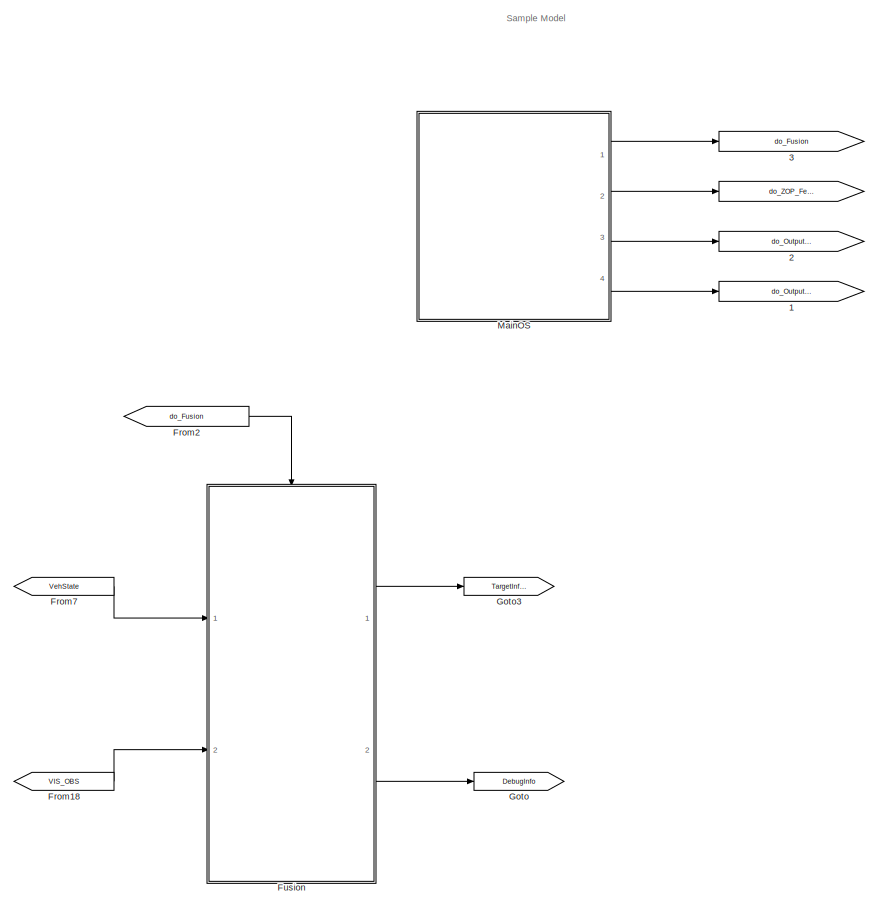
[diagram: root canvas - part 1/3, center side, full height]
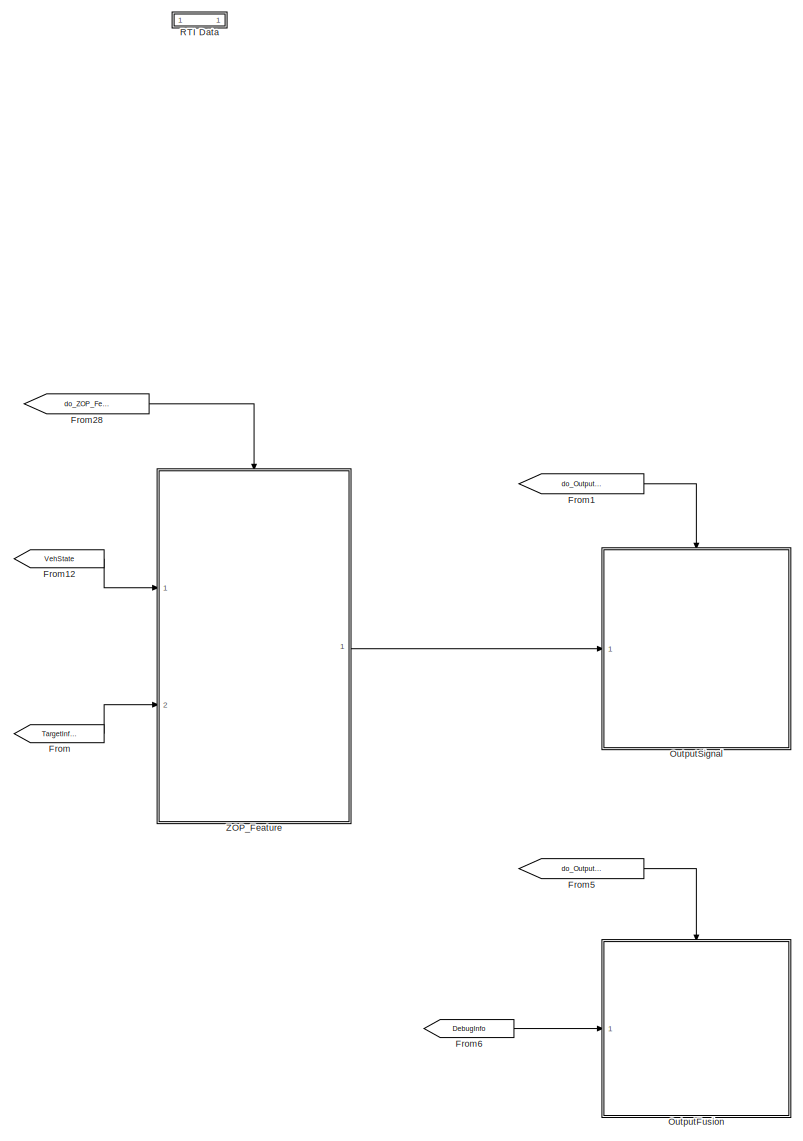
[diagram: root canvas - part 2/3, right side, full height]
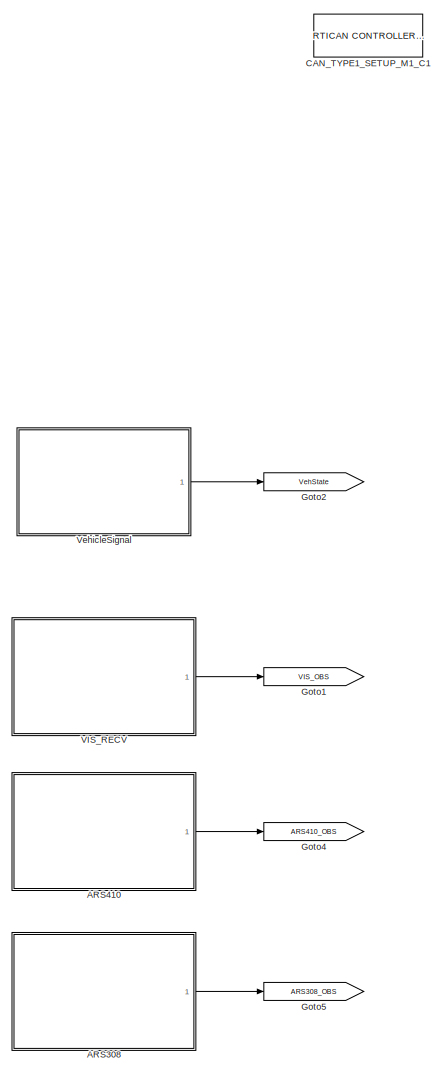
[diagram: root canvas - part 3/3, left side, full height]
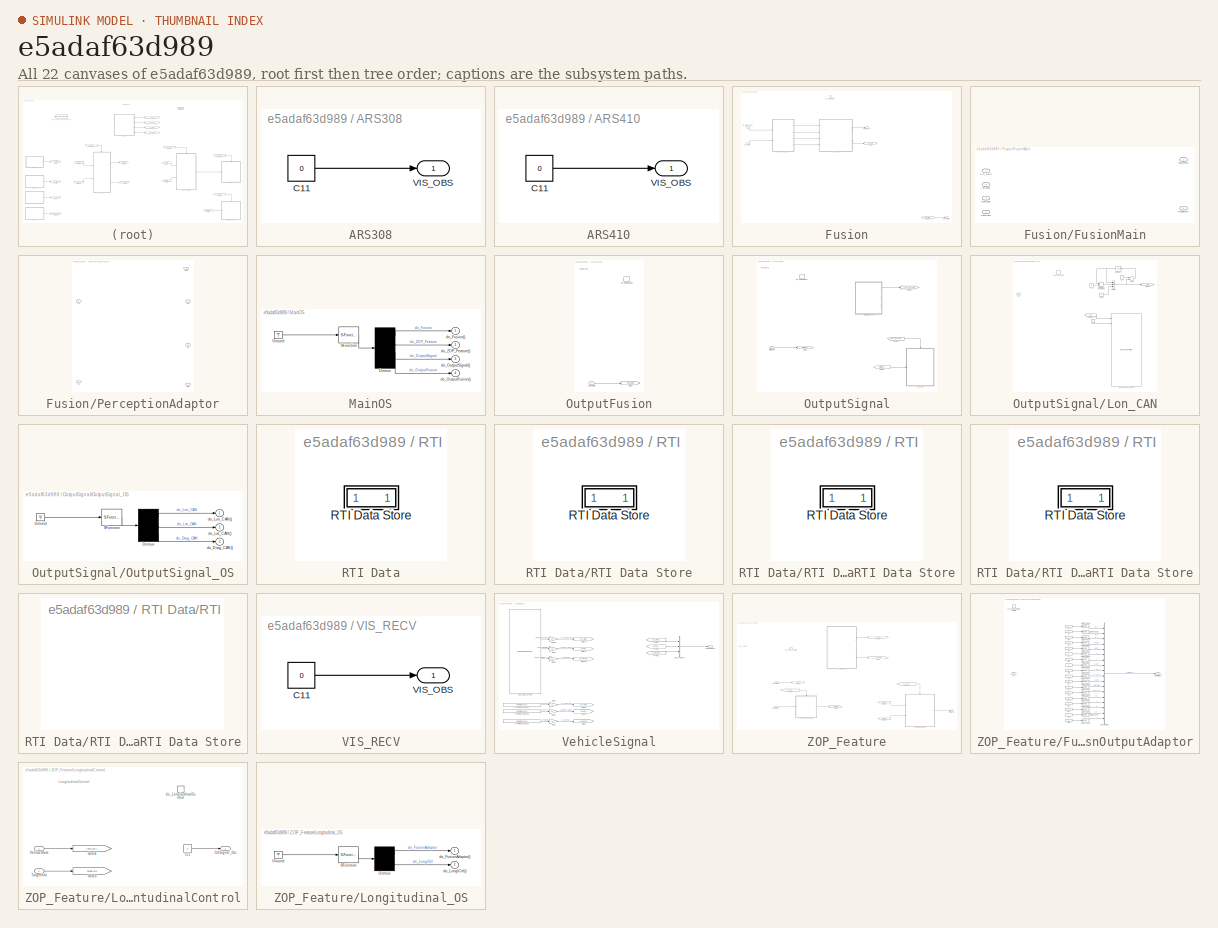
[diagram: thumbnail index - all 22 canvases of the model, root first then tree order]
MODEL slx_e5adaf63d989
KIND model
CONFIG AbsTol = auto
CONFIG EnableMultiTasking = off
CONFIG FixedStep = 0.005
CONFIG MaxStep = auto
CONFIG MinStep = auto
CONFIG PostLoadFcn = if any(exist('dsrtsu_mdlpostloadfcn', 'file') ~= 0), dsrtsu_mdlpostloadfcn('Execute', bdroot); end
CONFIG RelTol = 1e-3
CONFIG SampleTimeConstraint = Unconstrained
CONFIG Solver = FixedStepDiscrete
CONFIG SolverName = FixedStepDiscrete
CONFIG StartTime = 0.0
CONFIG StopTime = inf
BLOCK [Goto]  
  GotoTag = do_ZOP_Feature
BLOCK [Goto] 1
  GotoTag = do_OutputFusion
BLOCK [Goto] 2
  GotoTag = do_OutputSignal
BLOCK [Goto] 3
  GotoTag = do_Fusion
BLOCK [SubSystem] ARS308
  Ports = [0, 1]
  RequestExecContextInheritance = off
BLOCK [Constant] ARS308/C11
  Value = 0
BLOCK [Outport] ARS308/VIS_OBS
  IconDisplay = Port number
BLOCK [SubSystem] ARS410
  Ports = [0, 1]
  RequestExecContextInheritance = off
BLOCK [Constant] ARS410/C11
  Value = 0
BLOCK [Outport] ARS410/VIS_OBS
  IconDisplay = Port number
BLOCK [Reference] CAN_TYPE1_SETUP_M1_C1  REF=rtican/RTICAN
CONTROLLER SETUP 
  AttributesFormatString = Group Id: RTICAN1\n
  Ports = []
  SourceBlock = rtican/RTICAN\nCONTROLLER SETUP
  SourceProductName = dSPACE RTI CAN Blockset
  SourceType = RTI
BLOCK [From] From
  GotoTag = TargetInfo_F
BLOCK [From] From1
  GotoTag = do_OutputSignal
BLOCK [From] From12
  GotoTag = VehState
BLOCK [From] From18
  GotoTag = VIS_OBS
BLOCK [From] From2
  GotoTag = do_Fusion
BLOCK [From] From28
  GotoTag = do_ZOP_Feature
BLOCK [From] From5
  GotoTag = do_OutputFusion
BLOCK [From] From6
  GotoTag = DebugInfo
BLOCK [From] From7
  GotoTag = VehState
BLOCK [SubSystem] Fusion
  Ports = [2, 2, 0, 1]
  RequestExecContextInheritance = off
BLOCK [From] Fusion/From6
  GotoTag = DebugInfo
BLOCK [SubSystem] Fusion/FusionMain
  Ports = [4, 2]
  RequestExecContextInheritance = off
BLOCK [Outport] Fusion/FusionMain/DebugInfo
  IconDisplay = Port number
  Port = 2
BLOCK [Outport] Fusion/FusionMain/FusionObj
  IconDisplay = Port number
BLOCK [Inport] Fusion/FusionMain/VIS_OBS
  IconDisplay = Port number
  OutDataTypeStr = Bus: VIS_OBS_ST
BLOCK [Inport] Fusion/FusionMain/VehState
  IconDisplay = Port number
  Port = 4
BLOCK [Inport] Fusion/FusionMain/leftLane
  IconDisplay = Port number
  Port = 2
BLOCK [Inport] Fusion/FusionMain/rightLane
  IconDisplay = Port number
  Port = 3
BLOCK [Goto] Fusion/Goto
  GotoTag = DebugInfo
BLOCK [SubSystem] Fusion/PerceptionAdaptor
  Ports = [2, 4]
  RequestExecContextInheritance = off
BLOCK [Inport] Fusion/PerceptionAdaptor/In1
  IconDisplay = Port number
BLOCK [Inport] Fusion/PerceptionAdaptor/In2
  IconDisplay = Port number
  Port = 2
BLOCK [Outport] Fusion/PerceptionAdaptor/Out1
  IconDisplay = Port number
  Port = 2
BLOCK [Outport] Fusion/PerceptionAdaptor/Out2
  IconDisplay = Port number
  Port = 3
BLOCK [Outport] Fusion/PerceptionAdaptor/Out3
  IconDisplay = Port number
  Port = 4
BLOCK [Outport] Fusion/PerceptionAdaptor/Out4
  IconDisplay = Port number
BLOCK [Outport] Fusion/SelectorOut
  IconDisplay = Port number
  Port = 2
BLOCK [Outport] Fusion/TargetInfo_F
  IconDisplay = Port number
BLOCK [Inport] Fusion/VIS_OBS_INFO
  IconDisplay = Port number
  Port = 2
BLOCK [Inport] Fusion/VehState
  IconDisplay = Port number
BLOCK [TriggerPort] Fusion/do_Selection
  Ports = []
  StatesWhenEnabling = held
  TriggerType = function-call
  VariantControl = Variant
BLOCK [Goto] Goto
  GotoTag = DebugInfo
BLOCK [Goto] Goto1
  GotoTag = VIS_OBS
BLOCK [Goto] Goto2
  GotoTag = VehState
BLOCK [Goto] Goto3
  GotoTag = TargetInfo_F
BLOCK [Goto] Goto4
  GotoTag = ARS410_OBS
BLOCK [Goto] Goto5
  GotoTag = ARS308_OBS
BLOCK [SubSystem] MainOS
  ErrorFcn = Stateflow.Translate.translate
  PermitHierarchicalResolution = ExplicitOnly
  Ports = [0, 4]
  RequestExecContextInheritance = off
  SFBlockType = Chart
  TreatAsAtomicUnit = on
BLOCK [Demux] MainOS/ Demux 
  Ports = [1, 4]
BLOCK [Ground] MainOS/ Ground 
BLOCK [S-Function] MainOS/ SFunction 
  EnableBusSupport = on
  FunctionName = sf_sfun
  PortCounts = [1 1]
  Ports = [1, 1]
  SFcnIsStateOwnerBlock = off
  SFunctionDeploymentMode = off
  Tag = Stateflow S-Function ZOPDemo 3
BLOCK [Outport] MainOS/do_Fusion()
  IconDisplay = Port number
BLOCK [Outport] MainOS/do_OutputFusion()
  IconDisplay = Port number
  Port = 4
BLOCK [Outport] MainOS/do_OutputSignal()
  IconDisplay = Port number
  Port = 3
BLOCK [Outport] MainOS/do_ZOP_Feature()
  IconDisplay = Port number
  Port = 2
BLOCK [SubSystem] OutputFusion
  Ports = [1, 0, 0, 1]
  RequestExecContextInheritance = off
  TreatAsAtomicUnit = on
BLOCK [Inport] OutputFusion/Debuginfo
  IconDisplay = Port number
BLOCK [Goto] OutputFusion/Goto1
  GotoTag = DebugInfo
BLOCK [TriggerPort] OutputFusion/do_OutputFusion
  Ports = []
  StatesWhenEnabling = held
  TriggerType = function-call
  VariantControl = Variant
BLOCK [SubSystem] OutputSignal
  Ports = [1, 0, 0, 1]
  RequestExecContextInheritance = off
  TreatAsAtomicUnit = on
BLOCK [Inport] OutputSignal/CtrlSignals
  IconDisplay = Port number
BLOCK [From] OutputSignal/From10
  GotoTag = CtrlSignal
BLOCK [From] OutputSignal/From11
  GotoTag = do_Lon_CAN
BLOCK [Goto] OutputSignal/Goto10
  GotoTag = do_Lon_CAN
BLOCK [Goto] OutputSignal/Goto3
  GotoTag = CtrlSignal
BLOCK [SubSystem] OutputSignal/Lon_CAN
  Ports = [1, 0, 0, 1]
  RequestExecContextInheritance = off
BLOCK [Sum] OutputSignal/Lon_CAN/Add8
  InputSameDT = off
  OutDataTypeStr = Inherit: Inherit via internal rule
  Ports = [2, 1]
  SaturateOnIntegerOverflow = off
BLOCK [Constant] OutputSignal/Lon_CAN/C1
  Value = 3
BLOCK [Constant] OutputSignal/Lon_CAN/C11
  Value = 0
BLOCK [Constant] OutputSignal/Lon_CAN/C2
BLOCK [From] OutputSignal/Lon_CAN/From14
  GotoTag = ARC
BLOCK [Goto] OutputSignal/Lon_CAN/Goto13
  GotoTag = ARC
BLOCK [Inport] OutputSignal/Lon_CAN/In1
  IconDisplay = Port number
BLOCK [Reference] OutputSignal/Lon_CAN/RADAR_HSC2_FrP00  REF=rtican/RTICAN
Transmit (TX) 
  AttributesFormatString = Group Id: RTICAN1\n
  Ports = [13, 4]
  SourceBlock = rtican/RTICAN\nTransmit (TX)
  SourceProductName = dSPACE RTI CAN Blockset
  SourceType = RTI
BLOCK [RelationalOperator] OutputSignal/Lon_CAN/Relational Operator11
  InputSameDT = off
  Operator = <=
  OutDataTypeStr = boolean
  Ports = [2, 1]
BLOCK [Switch] OutputSignal/Lon_CAN/Switch4
  Criteria = u2 > Threshold
  InputSameDT = off
  SaturateOnIntegerOverflow = off
  Threshold = 0.5
BLOCK [UnitDelay] OutputSignal/Lon_CAN/Unit Delay4
  SampleTime = -1
BLOCK [Constant] OutputSignal/Lon_CAN/Zero3
  Value = 0
BLOCK [TriggerPort] OutputSignal/Lon_CAN/do_Lon_CAN
  Ports = []
  StatesWhenEnabling = held
  TriggerType = function-call
  VariantControl = Variant
BLOCK [SubSystem] OutputSignal/OutputSignal_OS
  ErrorFcn = Stateflow.Translate.translate
  PermitHierarchicalResolution = ExplicitOnly
  Ports = [0, 3]
  RequestExecContextInheritance = off
  SFBlockType = Chart
  TreatAsAtomicUnit = on
BLOCK [Demux] OutputSignal/OutputSignal_OS/ Demux 
  Outputs = 3
  Ports = [1, 3]
BLOCK [Ground] OutputSignal/OutputSignal_OS/ Ground 
BLOCK [S-Function] OutputSignal/OutputSignal_OS/ SFunction 
  EnableBusSupport = on
  FunctionName = sf_sfun
  PortCounts = [1 1]
  Ports = [1, 1]
  SFcnIsStateOwnerBlock = off
  SFunctionDeploymentMode = off
  Tag = Stateflow S-Function ZOPDemo 6
BLOCK [Outport] OutputSignal/OutputSignal_OS/do_Diag_CAN()
  IconDisplay = Port number
  Port = 3
BLOCK [Outport] OutputSignal/OutputSignal_OS/do_Lat_CAN()
  IconDisplay = Port number
  Port = 2
BLOCK [Outport] OutputSignal/OutputSignal_OS/do_Lon_CAN()
  IconDisplay = Port number
BLOCK [TriggerPort] OutputSignal/do_OutputSignal
  Ports = []
  StatesWhenEnabling = held
  TriggerType = function-call
  VariantControl = Variant
BLOCK [SubSystem] RTI Data
  CopyFcn = if exist('rtidc'), try,  rtidc('DataHostBlockClbCopy', gcbh); catch, disp(['Warning: ''CopyFcn'' for RTI Data block failed: ' lasterr]); end, end,
  DeleteFcn = if exist('rtidc'), try,  rtidc('DataHostBlockClbDelete', gcbh); catch, disp(['Warning: ''DeleteFcn'' for RTI Data block failed: ' lasterr]); end, end,
  LoadFcn = if exist('rtidc'), try,  rtidc('DataHostBlockClbLoad', gcbh); catch, disp(['Warning: ''LoadFcn'' for RTI Data block failed: ' lasterr]); end, end,
  ModelCloseFcn = if exist('rtidc'), try,  rtidc('DataHostBlockClbModelClose', gcbh); catch, disp(['Warning: ''ModelCloseFcn'' for RTI Data block failed: ' lasterr]); end, end,
  NameChangeFcn = if exist('rtidc'), try,  rtidc('DataHostBlockClbNameChange', gcbh); catch, disp(['Warning: ''NameChangeFcn'' for RTI Data block failed: ' lasterr]); end, end,
  Ports = []
  PostSaveFcn = if exist('rtidc'), try,  rtidc('DataHostBlockClbPostSave', gcbh); catch, disp(['Warning: ''PostSaveFcn'' for RTI Data block failed: ' lasterr]); end, end,
  PreSaveFcn = if exist('rtidc'), try,  rtidc('DataHostBlockClbPreSave', gcbh); catch, disp(['Warning: ''PreSaveFcn'' for RTI Data block failed: ' lasterr]); end, end,
  RequestExecContextInheritance = off
  Tag = struct('RTIDataServer',struct('RTIDataServerVs','2','RTIModelDescription','struct(''main'',''ZOPDemo'',''sub'','''',''isMp'',0)'))
BLOCK [SubSystem] RTI Data/RTI Data Store
  Ports = []
  RequestExecContextInheritance = off
  Tag = struct('private',struct('version',struct('dsVer',uint32(2)),'access',struct('modified',['13-Nov-2020 14:59:37'],'type','Model','isPerm',1)),'public',struct('main',struct('data',[]),'sub',struct('name',{{'ZOPDemo'}},'data',{{struct('TH',struct('thTaskInfo',struct('taskType',{'TIMER','HWINT','TMRINT','SWINT','GLINT'},'tasksNumOf',{1,0,0,0,0},'srcIds',{{'TIMERA'},{},{},{},{}},'taskNames',{{['Timer Ta...<+766ch>
BLOCK [SubSystem] RTI Data/RTI Data Store/RTI Data Store
  Ports = []
  RequestExecContextInheritance = off
BLOCK [SubSystem] RTI Data/RTI Data Store/RTI Data Store/RTI Data Store
  Ports = []
  RequestExecContextInheritance = off
BLOCK [SubSystem] RTI Data/RTI Data Store/RTI Data Store/RTI Data Store/RTI Data Store
  Ports = []
  RequestExecContextInheritance = off
BLOCK [SubSystem] VIS_RECV
  Ports = [0, 1]
  RequestExecContextInheritance = off
BLOCK [Constant] VIS_RECV/C11
  Value = 0
BLOCK [Outport] VIS_RECV/VIS_OBS
  IconDisplay = Port number
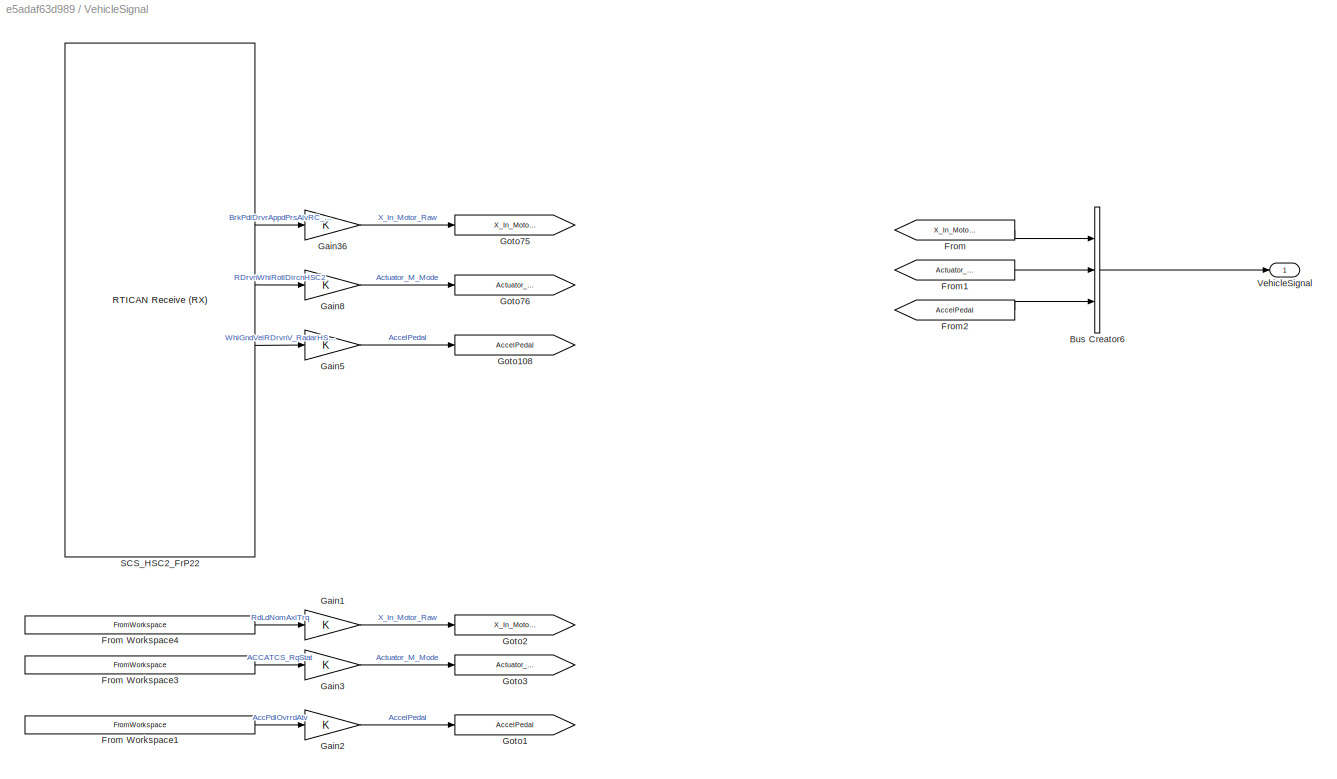
BLOCK [SubSystem] VehicleSignal
  Ports = [0, 1]
  RequestExecContextInheritance = off
  TreatAsAtomicUnit = on
BLOCK [BusCreator] VehicleSignal/Bus Creator6
  DisplayOption = bar
  InheritFromInputs = on
  Inputs = 3
  Ports = [3, 1]
BLOCK [From] VehicleSignal/From
  GotoTag = X_In_Motor_Raw
BLOCK [FromWorkspace] VehicleSignal/From Workspace1
  Commented = on
  Interpolate = off
  OutputAfterFinalValue = Setting to zero
  VariableName = PPEI_Torque_Request_Status_AccPdlOvrrdAtv
  ZeroCross = on
BLOCK [FromWorkspace] VehicleSignal/From Workspace3
  Commented = on
  Interpolate = off
  OutputAfterFinalValue = Setting to zero
  VariableName = PPEI_Torque_Request_Status_ACCATCS_RqStat
  ZeroCross = on
BLOCK [FromWorkspace] VehicleSignal/From Workspace4
  Commented = on
  Interpolate = off
  OutputAfterFinalValue = Setting to zero
  VariableName = PPEI_Torque_Request_Status_RdLdNomAxlTrq
  ZeroCross = on
BLOCK [From] VehicleSignal/From1
  GotoTag = Actuator_M_Mode
BLOCK [From] VehicleSignal/From2
  GotoTag = AccelPedal
BLOCK [Gain] VehicleSignal/Gain1
  Commented = on
  OutDataTypeStr = Inherit: Inherit via internal rule
  ParamDataTypeStr = Inherit: Inherit via internal rule
  SaturateOnIntegerOverflow = off
BLOCK [Gain] VehicleSignal/Gain2
  Commented = on
  OutDataTypeStr = Inherit: Inherit via internal rule
  ParamDataTypeStr = Inherit: Inherit via internal rule
  SaturateOnIntegerOverflow = off
BLOCK [Gain] VehicleSignal/Gain3
  Commented = on
  OutDataTypeStr = Inherit: Inherit via internal rule
  ParamDataTypeStr = Inherit: Inherit via internal rule
  SaturateOnIntegerOverflow = off
BLOCK [Gain] VehicleSignal/Gain36
  OutDataTypeStr = Inherit: Inherit via internal rule
  ParamDataTypeStr = Inherit: Inherit via internal rule
  SaturateOnIntegerOverflow = off
BLOCK [Gain] VehicleSignal/Gain5
  OutDataTypeStr = Inherit: Inherit via internal rule
  ParamDataTypeStr = Inherit: Inherit via internal rule
  SaturateOnIntegerOverflow = off
BLOCK [Gain] VehicleSignal/Gain8
  OutDataTypeStr = Inherit: Inherit via internal rule
  ParamDataTypeStr = Inherit: Inherit via internal rule
  SaturateOnIntegerOverflow = off
BLOCK [Goto] VehicleSignal/Goto1
  Commented = on
  GotoTag = AccelPedal
BLOCK [Goto] VehicleSignal/Goto108
  GotoTag = AccelPedal
BLOCK [Goto] VehicleSignal/Goto2
  Commented = on
  GotoTag = X_In_Motor_Raw
BLOCK [Goto] VehicleSignal/Goto3
  Commented = on
  GotoTag = Actuator_M_Mode
BLOCK [Goto] VehicleSignal/Goto75
  GotoTag = X_In_Motor_Raw
BLOCK [Goto] VehicleSignal/Goto76
  GotoTag = Actuator_M_Mode
BLOCK [Reference] VehicleSignal/SCS_HSC2_FrP22  REF=rtican/RTICAN
Receive (RX) 
  AttributesFormatString = Group Id: RTICAN1\n
  Ports = [0, 16]
  SourceBlock = rtican/RTICAN\nReceive (RX)
  SourceProductName = dSPACE RTI CAN Blockset
  SourceType = RTI
BLOCK [Outport] VehicleSignal/VehicleSignal
  IconDisplay = Port number
BLOCK [SubSystem] ZOP_Feature
  Ports = [2, 1, 0, 1]
  RequestExecContextInheritance = off
  TreatAsAtomicUnit = on
BLOCK [Outport] ZOP_Feature/CtrlSignal
  IconDisplay = Port number
BLOCK [From] ZOP_Feature/From1
  CloseFcn = tagdialog Close
  GotoTag = do_Input_Process
BLOCK [From] ZOP_Feature/From54
  GotoTag = VehicleState
BLOCK [From] ZOP_Feature/From60
  CloseFcn = tagdialog Close
  GotoTag = do_LongiCtrl
BLOCK [From] ZOP_Feature/From61
  GotoTag = TargetInfo
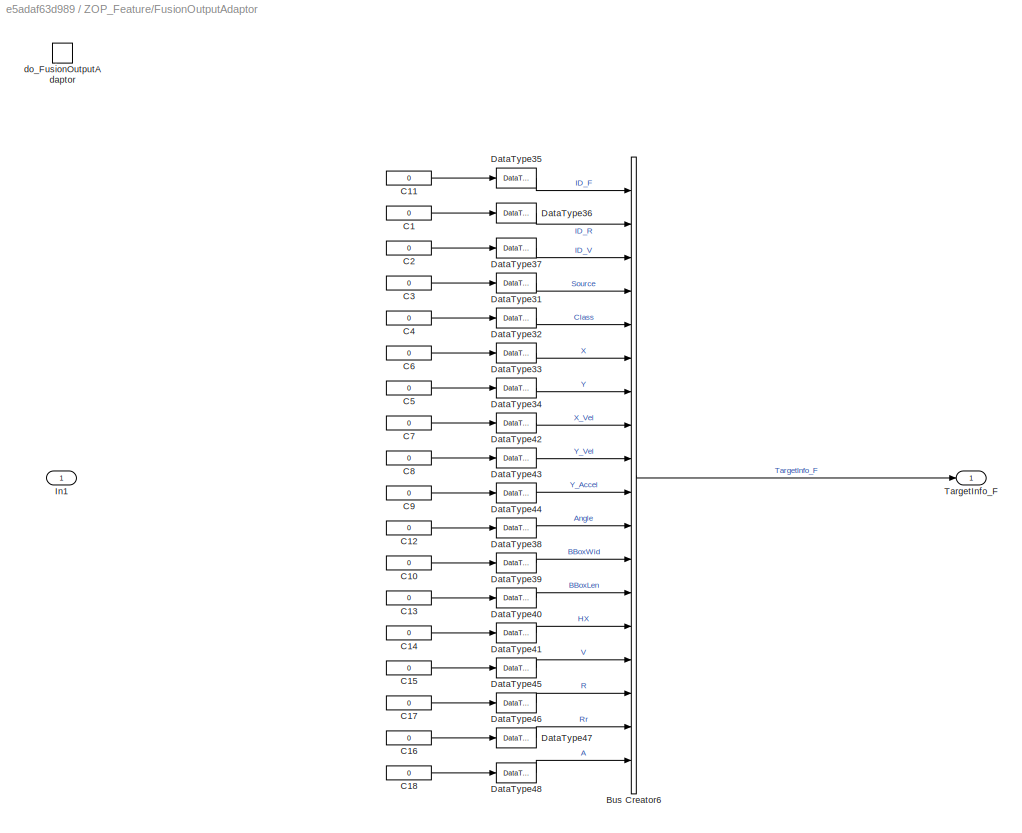
BLOCK [SubSystem] ZOP_Feature/FusionOutputAdaptor
  Ports = [1, 1, 0, 1]
  RequestExecContextInheritance = off
BLOCK [BusCreator] ZOP_Feature/FusionOutputAdaptor/Bus Creator6
  DisplayOption = bar
  InheritFromInputs = on
  Inputs = 18
  Ports = [18, 1]
BLOCK [Constant] ZOP_Feature/FusionOutputAdaptor/C1
  Value = 0
BLOCK [Constant] ZOP_Feature/FusionOutputAdaptor/C10
  Value = 0
BLOCK [Constant] ZOP_Feature/FusionOutputAdaptor/C11
  Value = 0
BLOCK [Constant] ZOP_Feature/FusionOutputAdaptor/C12
  Value = 0
BLOCK [Constant] ZOP_Feature/FusionOutputAdaptor/C13
  Value = 0
BLOCK [Constant] ZOP_Feature/FusionOutputAdaptor/C14
  Value = 0
BLOCK [Constant] ZOP_Feature/FusionOutputAdaptor/C15
  Value = 0
BLOCK [Constant] ZOP_Feature/FusionOutputAdaptor/C16
  Value = 0
BLOCK [Constant] ZOP_Feature/FusionOutputAdaptor/C17
  Value = 0
BLOCK [Constant] ZOP_Feature/FusionOutputAdaptor/C18
  Value = 0
BLOCK [Constant] ZOP_Feature/FusionOutputAdaptor/C2
  Value = 0
BLOCK [Constant] ZOP_Feature/FusionOutputAdaptor/C3
  Value = 0
BLOCK [Constant] ZOP_Feature/FusionOutputAdaptor/C4
  Value = 0
BLOCK [Constant] ZOP_Feature/FusionOutputAdaptor/C5
  Value = 0
BLOCK [Constant] ZOP_Feature/FusionOutputAdaptor/C6
  Value = 0
BLOCK [Constant] ZOP_Feature/FusionOutputAdaptor/C7
  Value = 0
BLOCK [Constant] ZOP_Feature/FusionOutputAdaptor/C8
  Value = 0
BLOCK [Constant] ZOP_Feature/FusionOutputAdaptor/C9
  Value = 0
BLOCK [DataTypeConversion] ZOP_Feature/FusionOutputAdaptor/DataType31
  RndMeth = Floor
  SaturateOnIntegerOverflow = off
BLOCK [DataTypeConversion] ZOP_Feature/FusionOutputAdaptor/DataType32
  RndMeth = Floor
  SaturateOnIntegerOverflow = off
BLOCK [DataTypeConversion] ZOP_Feature/FusionOutputAdaptor/DataType33
  RndMeth = Floor
  SaturateOnIntegerOverflow = off
BLOCK [DataTypeConversion] ZOP_Feature/FusionOutputAdaptor/DataType34
  RndMeth = Floor
  SaturateOnIntegerOverflow = off
BLOCK [DataTypeConversion] ZOP_Feature/FusionOutputAdaptor/DataType35
  RndMeth = Floor
  SaturateOnIntegerOverflow = off
BLOCK [DataTypeConversion] ZOP_Feature/FusionOutputAdaptor/DataType36
  RndMeth = Floor
  SaturateOnIntegerOverflow = off
BLOCK [DataTypeConversion] ZOP_Feature/FusionOutputAdaptor/DataType37
  RndMeth = Floor
  SaturateOnIntegerOverflow = off
BLOCK [DataTypeConversion] ZOP_Feature/FusionOutputAdaptor/DataType38
  RndMeth = Floor
  SaturateOnIntegerOverflow = off
BLOCK [DataTypeConversion] ZOP_Feature/FusionOutputAdaptor/DataType39
  RndMeth = Floor
  SaturateOnIntegerOverflow = off
BLOCK [DataTypeConversion] ZOP_Feature/FusionOutputAdaptor/DataType40
  RndMeth = Floor
  SaturateOnIntegerOverflow = off
BLOCK [DataTypeConversion] ZOP_Feature/FusionOutputAdaptor/DataType41
  RndMeth = Floor
  SaturateOnIntegerOverflow = off
BLOCK [DataTypeConversion] ZOP_Feature/FusionOutputAdaptor/DataType42
  RndMeth = Floor
  SaturateOnIntegerOverflow = off
BLOCK [DataTypeConversion] ZOP_Feature/FusionOutputAdaptor/DataType43
  RndMeth = Floor
  SaturateOnIntegerOverflow = off
BLOCK [DataTypeConversion] ZOP_Feature/FusionOutputAdaptor/DataType44
  RndMeth = Floor
  SaturateOnIntegerOverflow = off
BLOCK [DataTypeConversion] ZOP_Feature/FusionOutputAdaptor/DataType45
  RndMeth = Floor
  SaturateOnIntegerOverflow = off
BLOCK [DataTypeConversion] ZOP_Feature/FusionOutputAdaptor/DataType46
  RndMeth = Floor
  SaturateOnIntegerOverflow = off
BLOCK [DataTypeConversion] ZOP_Feature/FusionOutputAdaptor/DataType47
  RndMeth = Floor
  SaturateOnIntegerOverflow = off
BLOCK [DataTypeConversion] ZOP_Feature/FusionOutputAdaptor/DataType48
  RndMeth = Floor
  SaturateOnIntegerOverflow = off
BLOCK [Inport] ZOP_Feature/FusionOutputAdaptor/In1
  IconDisplay = Port number
BLOCK [Outport] ZOP_Feature/FusionOutputAdaptor/TargetInfo_F
  IconDisplay = Port number
BLOCK [TriggerPort] ZOP_Feature/FusionOutputAdaptor/do_FusionOutputAdaptor
  Ports = []
  StatesWhenEnabling = held
  TriggerType = function-call
  VariantControl = Variant
BLOCK [Goto] ZOP_Feature/Goto
  GotoTag = TargetInfo
BLOCK [Goto] ZOP_Feature/Goto1
  GotoTag = VehicleState
BLOCK [Goto] ZOP_Feature/Goto2
  GotoTag = do_LongiCtrl
BLOCK [Goto] ZOP_Feature/Goto27
  GotoTag = do_Input_Process
BLOCK [SubSystem] ZOP_Feature/LongitudinalControl
  Ports = [2, 1, 0, 1]
  RequestExecContextInheritance = off
BLOCK [Constant] ZOP_Feature/LongitudinalControl/C11
  Value = 0
BLOCK [Outport] ZOP_Feature/LongitudinalControl/CtrlSignal_Out
  IconDisplay = Port number
BLOCK [Goto] ZOP_Feature/LongitudinalControl/Goto3
  GotoTag = TargetInfo
BLOCK [Goto] ZOP_Feature/LongitudinalControl/Goto4
  GotoTag = VehicleState
BLOCK [Inport] ZOP_Feature/LongitudinalControl/TargetInfo
  IconDisplay = Port number
  Port = 2
BLOCK [Inport] ZOP_Feature/LongitudinalControl/VehicleState
  IconDisplay = Port number
BLOCK [TriggerPort] ZOP_Feature/LongitudinalControl/do_LongitudinalControl
  Ports = []
  StatesWhenEnabling = held
  TriggerType = function-call
  VariantControl = Variant
BLOCK [SubSystem] ZOP_Feature/Longitudinal_OS
  ErrorFcn = Stateflow.Translate.translate
  PermitHierarchicalResolution = ExplicitOnly
  Ports = [0, 2]
  RequestExecContextInheritance = off
  SFBlockType = Chart
  TreatAsAtomicUnit = on
BLOCK [Demux] ZOP_Feature/Longitudinal_OS/ Demux 
  Outputs = 2
  Ports = [1, 2]
BLOCK [Ground] ZOP_Feature/Longitudinal_OS/ Ground 
BLOCK [S-Function] ZOP_Feature/Longitudinal_OS/ SFunction 
  EnableBusSupport = on
  FunctionName = sf_sfun
  PortCounts = [1 1]
  Ports = [1, 1]
  SFcnIsStateOwnerBlock = off
  SFunctionDeploymentMode = off
  Tag = Stateflow S-Function ZOPDemo 15
BLOCK [Outport] ZOP_Feature/Longitudinal_OS/do_FusionAdaptor()
  IconDisplay = Port number
BLOCK [Outport] ZOP_Feature/Longitudinal_OS/do_LongiCtrl()
  IconDisplay = Port number
  Port = 2
BLOCK [Inport] ZOP_Feature/TargetInfo_F
  IconDisplay = Port number
  Port = 2
BLOCK [Inport] ZOP_Feature/VehStatus
  IconDisplay = Port number
BLOCK [TriggerPort] ZOP_Feature/do_ZOP_Feature
  Ports = []
  StatesWhenEnabling = held
  TriggerType = function-call
  VariantControl = Variant
ANNOTATION (root): Sample Model
ANNOTATION OutputFusion: OutputFusion
ANNOTATION OutputSignal: OutputSignal
ANNOTATION ZOP_Feature: ZOP_Feature
ANNOTATION ZOP_Feature/LongitudinalControl: LongitudinalControl
LINE ARS308/C11:1 -> ARS308/VIS_OBS:1
LINE ARS308:1 -> Goto5:1
LINE ARS410/C11:1 -> ARS410/VIS_OBS:1
LINE ARS410:1 -> Goto4:1
LINE From12:1 -> ZOP_Feature:1
LINE From18:1 -> Fusion:2
LINE From1:1 -> OutputSignal:trigger
LINE From28:1 -> ZOP_Feature:trigger
LINE From2:1 -> Fusion:trigger
LINE From5:1 -> OutputFusion:trigger
LINE From6:1 -> OutputFusion:1
LINE From7:1 -> Fusion:1
LINE From:1 -> ZOP_Feature:2
LINE Fusion/From6:1 -> Fusion/SelectorOut:1
LINE Fusion/FusionMain:1 -> Fusion/TargetInfo_F:1
LINE Fusion/FusionMain:2 -> Fusion/Goto:1
LINE Fusion/PerceptionAdaptor:1 -> Fusion/FusionMain:1
LINE Fusion/PerceptionAdaptor:2 -> Fusion/FusionMain:2
LINE Fusion/PerceptionAdaptor:3 -> Fusion/FusionMain:3
LINE Fusion/PerceptionAdaptor:4 -> Fusion/FusionMain:4
LINE Fusion/VIS_OBS_INFO:1 -> Fusion/PerceptionAdaptor:1
LINE Fusion/VehState:1 -> Fusion/PerceptionAdaptor:2
LINE Fusion:1 -> Goto3:1
LINE Fusion:2 -> Goto:1
LINE MainOS:1 -> 3:1
LINE MainOS:2 ->  :1
LINE MainOS:3 -> 2:1
LINE MainOS:4 -> 1:1
LINE OutputFusion/Debuginfo:1 -> OutputFusion/Goto1:1
LINE OutputSignal/CtrlSignals:1 -> OutputSignal/Goto3:1
LINE OutputSignal/From10:1 -> OutputSignal/Lon_CAN:1
LINE OutputSignal/From11:1 -> OutputSignal/Lon_CAN:trigger
LINE OutputSignal/Lon_CAN/Add8:1 -> OutputSignal/Lon_CAN/Unit Delay4:1
LINE OutputSignal/Lon_CAN/C11:1 -> OutputSignal/Lon_CAN/RADAR_HSC2_FrP00:2
LINE OutputSignal/Lon_CAN/C1:1 -> OutputSignal/Lon_CAN/Relational Operator11:2
LINE OutputSignal/Lon_CAN/C2:1 -> OutputSignal/Lon_CAN/Add8:1
LINE OutputSignal/Lon_CAN/From14:1 -> OutputSignal/Lon_CAN/RADAR_HSC2_FrP00:1
LINE OutputSignal/Lon_CAN/Relational Operator11:1 -> OutputSignal/Lon_CAN/Switch4:2
NET OutputSignal/Lon_CAN/Switch4:1 -> OutputSignal/Lon_CAN/Add8:2, OutputSignal/Lon_CAN/Goto13:1
NET OutputSignal/Lon_CAN/Unit Delay4:1 -> OutputSignal/Lon_CAN/Relational Operator11:1, OutputSignal/Lon_CAN/Switch4:1
LINE OutputSignal/Lon_CAN/Zero3:1 -> OutputSignal/Lon_CAN/Switch4:3
LINE OutputSignal/OutputSignal_OS:1 -> OutputSignal/Goto10:1
LINE VIS_RECV/C11:1 -> VIS_RECV/VIS_OBS:1
LINE VIS_RECV:1 -> Goto1:1
LINE VehicleSignal/Bus Creator6:1 -> VehicleSignal/VehicleSignal:1
LINE VehicleSignal/From Workspace1:1 -> VehicleSignal/Gain2:1
LINE VehicleSignal/From Workspace3:1 -> VehicleSignal/Gain3:1
LINE VehicleSignal/From Workspace4:1 -> VehicleSignal/Gain1:1
LINE VehicleSignal/From1:1 -> VehicleSignal/Bus Creator6:2
LINE VehicleSignal/From2:1 -> VehicleSignal/Bus Creator6:3
LINE VehicleSignal/From:1 -> VehicleSignal/Bus Creator6:1
LINE VehicleSignal/Gain1:1 -> VehicleSignal/Goto2:1
LINE VehicleSignal/Gain2:1 -> VehicleSignal/Goto1:1
LINE VehicleSignal/Gain36:1 -> VehicleSignal/Goto75:1
LINE VehicleSignal/Gain3:1 -> VehicleSignal/Goto3:1
LINE VehicleSignal/Gain5:1 -> VehicleSignal/Goto108:1
LINE VehicleSignal/Gain8:1 -> VehicleSignal/Goto76:1
LINE VehicleSignal/SCS_HSC2_FrP22:10 -> VehicleSignal/Gain5:1
LINE VehicleSignal/SCS_HSC2_FrP22:6 -> VehicleSignal/Gain36:1
LINE VehicleSignal/SCS_HSC2_FrP22:8 -> VehicleSignal/Gain8:1
LINE VehicleSignal:1 -> Goto2:1
LINE ZOP_Feature/From1:1 -> ZOP_Feature/FusionOutputAdaptor:trigger
LINE ZOP_Feature/From54:1 -> ZOP_Feature/LongitudinalControl:1
LINE ZOP_Feature/From60:1 -> ZOP_Feature/LongitudinalControl:trigger
LINE ZOP_Feature/From61:1 -> ZOP_Feature/LongitudinalControl:2
LINE ZOP_Feature/FusionOutputAdaptor/Bus Creator6:1 -> ZOP_Feature/FusionOutputAdaptor/TargetInfo_F:1
LINE ZOP_Feature/FusionOutputAdaptor/C10:1 -> ZOP_Feature/FusionOutputAdaptor/DataType39:1
LINE ZOP_Feature/FusionOutputAdaptor/C11:1 -> ZOP_Feature/FusionOutputAdaptor/DataType35:1
LINE ZOP_Feature/FusionOutputAdaptor/C12:1 -> ZOP_Feature/FusionOutputAdaptor/DataType38:1
LINE ZOP_Feature/FusionOutputAdaptor/C13:1 -> ZOP_Feature/FusionOutputAdaptor/DataType40:1
LINE ZOP_Feature/FusionOutputAdaptor/C14:1 -> ZOP_Feature/FusionOutputAdaptor/DataType41:1
LINE ZOP_Feature/FusionOutputAdaptor/C15:1 -> ZOP_Feature/FusionOutputAdaptor/DataType45:1
LINE ZOP_Feature/FusionOutputAdaptor/C16:1 -> ZOP_Feature/FusionOutputAdaptor/DataType47:1
LINE ZOP_Feature/FusionOutputAdaptor/C17:1 -> ZOP_Feature/FusionOutputAdaptor/DataType46:1
LINE ZOP_Feature/FusionOutputAdaptor/C18:1 -> ZOP_Feature/FusionOutputAdaptor/DataType48:1
LINE ZOP_Feature/FusionOutputAdaptor/C1:1 -> ZOP_Feature/FusionOutputAdaptor/DataType36:1
LINE ZOP_Feature/FusionOutputAdaptor/C2:1 -> ZOP_Feature/FusionOutputAdaptor/DataType37:1
LINE ZOP_Feature/FusionOutputAdaptor/C3:1 -> ZOP_Feature/FusionOutputAdaptor/DataType31:1
LINE ZOP_Feature/FusionOutputAdaptor/C4:1 -> ZOP_Feature/FusionOutputAdaptor/DataType32:1
LINE ZOP_Feature/FusionOutputAdaptor/C5:1 -> ZOP_Feature/FusionOutputAdaptor/DataType34:1
LINE ZOP_Feature/FusionOutputAdaptor/C6:1 -> ZOP_Feature/FusionOutputAdaptor/DataType33:1
LINE ZOP_Feature/FusionOutputAdaptor/C7:1 -> ZOP_Feature/FusionOutputAdaptor/DataType42:1
LINE ZOP_Feature/FusionOutputAdaptor/C8:1 -> ZOP_Feature/FusionOutputAdaptor/DataType43:1
LINE ZOP_Feature/FusionOutputAdaptor/C9:1 -> ZOP_Feature/FusionOutputAdaptor/DataType44:1
LINE ZOP_Feature/FusionOutputAdaptor/DataType31:1 -> ZOP_Feature/FusionOutputAdaptor/Bus Creator6:4
LINE ZOP_Feature/FusionOutputAdaptor/DataType32:1 -> ZOP_Feature/FusionOutputAdaptor/Bus Creator6:5
LINE ZOP_Feature/FusionOutputAdaptor/DataType33:1 -> ZOP_Feature/FusionOutputAdaptor/Bus Creator6:6
LINE ZOP_Feature/FusionOutputAdaptor/DataType34:1 -> ZOP_Feature/FusionOutputAdaptor/Bus Creator6:7
LINE ZOP_Feature/FusionOutputAdaptor/DataType35:1 -> ZOP_Feature/FusionOutputAdaptor/Bus Creator6:1
LINE ZOP_Feature/FusionOutputAdaptor/DataType36:1 -> ZOP_Feature/FusionOutputAdaptor/Bus Creator6:2
LINE ZOP_Feature/FusionOutputAdaptor/DataType37:1 -> ZOP_Feature/FusionOutputAdaptor/Bus Creator6:3
LINE ZOP_Feature/FusionOutputAdaptor/DataType38:1 -> ZOP_Feature/FusionOutputAdaptor/Bus Creator6:11
LINE ZOP_Feature/FusionOutputAdaptor/DataType39:1 -> ZOP_Feature/FusionOutputAdaptor/Bus Creator6:12
LINE ZOP_Feature/FusionOutputAdaptor/DataType40:1 -> ZOP_Feature/FusionOutputAdaptor/Bus Creator6:13
LINE ZOP_Feature/FusionOutputAdaptor/DataType41:1 -> ZOP_Feature/FusionOutputAdaptor/Bus Creator6:14
LINE ZOP_Feature/FusionOutputAdaptor/DataType42:1 -> ZOP_Feature/FusionOutputAdaptor/Bus Creator6:8
LINE ZOP_Feature/FusionOutputAdaptor/DataType43:1 -> ZOP_Feature/FusionOutputAdaptor/Bus Creator6:9
LINE ZOP_Feature/FusionOutputAdaptor/DataType44:1 -> ZOP_Feature/FusionOutputAdaptor/Bus Creator6:10
LINE ZOP_Feature/FusionOutputAdaptor/DataType45:1 -> ZOP_Feature/FusionOutputAdaptor/Bus Creator6:15
LINE ZOP_Feature/FusionOutputAdaptor/DataType46:1 -> ZOP_Feature/FusionOutputAdaptor/Bus Creator6:16
LINE ZOP_Feature/FusionOutputAdaptor/DataType47:1 -> ZOP_Feature/FusionOutputAdaptor/Bus Creator6:17
LINE ZOP_Feature/FusionOutputAdaptor/DataType48:1 -> ZOP_Feature/FusionOutputAdaptor/Bus Creator6:18
LINE ZOP_Feature/FusionOutputAdaptor:1 -> ZOP_Feature/Goto:1
LINE ZOP_Feature/LongitudinalControl/C11:1 -> ZOP_Feature/LongitudinalControl/CtrlSignal_Out:1
LINE ZOP_Feature/LongitudinalControl/TargetInfo:1 -> ZOP_Feature/LongitudinalControl/Goto3:1
LINE ZOP_Feature/LongitudinalControl/VehicleState:1 -> ZOP_Feature/LongitudinalControl/Goto4:1
LINE ZOP_Feature/LongitudinalControl:1 -> ZOP_Feature/CtrlSignal:1
LINE ZOP_Feature/Longitudinal_OS:1 -> ZOP_Feature/Goto27:1
LINE ZOP_Feature/Longitudinal_OS:2 -> ZOP_Feature/Goto2:1
LINE ZOP_Feature/TargetInfo_F:1 -> ZOP_Feature/FusionOutputAdaptor:1
LINE ZOP_Feature/VehStatus:1 -> ZOP_Feature/Goto1:1
LINE ZOP_Feature:1 -> OutputSignal:1
note: NET lines group one-source signal fan-out (src -> all destinations, sorted); 1:1 wires keep LINE
CHART MainOS states=0 transitions=7
CHART OutputSignal/OutputSignal_OS states=0 transitions=26
CHART ZOP_Feature/Longitudinal_OS states=0 transitions=4
